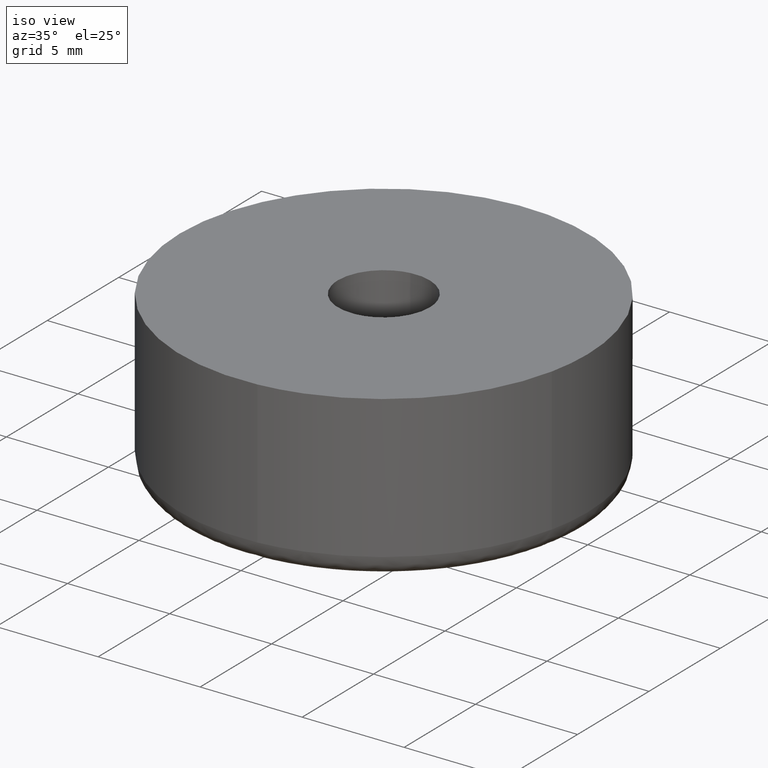
[diagram: clean part render]
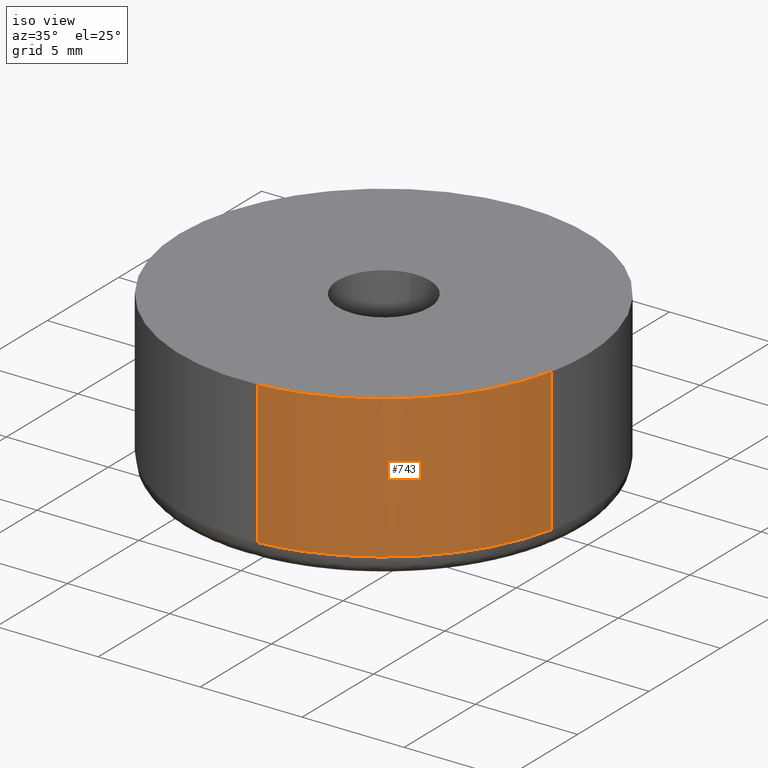
[diagram: same view with one face highlighted and labeled with its STEP entity id]
A machine part, iso view. The second image highlights one B-rep face of the part: STEP entity #743.
In plain terms, the highlighted face is a freeform B-spline surface patch.
Its self-contained STEP definition (entity closure, byte-faithful):
#679=CARTESIAN_POINT('',(9.773270624397938,-2.118269616413071,8.175000000000690));
#680=CARTESIAN_POINT('',(9.766484864417761,-2.148661470704314,8.175000000000690));
#681=CARTESIAN_POINT('',(8.149777588713580,-9.389520578355468,8.175000000000690));
#682=CARTESIAN_POINT('',(0.756423948956647,-9.971390128962344,8.175000000000690));
#683=CARTESIAN_POINT('',(0.728322792584790,-9.973601737932551,8.175000000000690));
#684=CARTESIAN_POINT('',(9.773270624397938,-2.118269616413071,0.820624999971612));
#685=CARTESIAN_POINT('',(9.766484864417761,-2.148661470704314,0.820624999971612));
#686=CARTESIAN_POINT('',(8.149777588713580,-9.389520578355468,0.820624999971612));
#687=CARTESIAN_POINT('',(0.756423948956647,-9.971390128962344,0.820624999971612));
#688=CARTESIAN_POINT('',(0.728322792584790,-9.973601737932551,0.820624999971612));
#696=(BOUNDED_SURFACE()B_SPLINE_SURFACE(2,1,((#679,#684),(#680,#685),(#681,#686),(#682,#687),(#683,#688)),.UNSPECIFIED.,.F.,.F.,.U.)B_SPLINE_SURFACE_WITH_KNOTS((3,1,1,3),(2,2),(0.0,0.065829388922783,13.230316627789239,13.296145906436040),(0.0,7.354375000029079),.UNSPECIFIED.)GEOMETRIC_REPRESENTATION_ITEM()RATIONAL_B_SPLINE_SURFACE(((0.907680205931852,0.907680205931852),(0.906977187955774,0.906977187955774),(0.765685424949238,0.765685424949238),(1.001171694663996,1.001171694663996),(1.002343389327992,1.002343389327992)))REPRESENTATION_ITEM('')SURFACE());
#697=CARTESIAN_POINT('',(9.759689999604271,-2.179094103425024,0.999999999999983));
#698=VERTEX_POINT('',#697);
#699=CARTESIAN_POINT('',(0.784585152188208,-9.969173794198387,1.000000000000015));
#700=VERTEX_POINT('',#699);
#701=CARTESIAN_POINT('',(9.759689999604271,-2.179094103425024,0.999999999999983));
#702=CARTESIAN_POINT('',(8.149781639381867,-9.389524574907334,1.0));
#703=CARTESIAN_POINT('',(0.784585152188208,-9.969173794198387,1.000000000000015));
#711=(BOUNDED_CURVE()B_SPLINE_CURVE(2,(#701,#702,#703),.UNSPECIFIED.,.F.,.U.)B_SPLINE_CURVE_WITH_KNOTS((3,3),(0.537286560370751,0.736331400453952),.UNSPECIFIED.)CURVE()GEOMETRIC_REPRESENTATION_ITEM()RATIONAL_B_SPLINE_CURVE((0.925662740296602,0.762027680026814,0.969723564491107))REPRESENTATION_ITEM(''));
#712=EDGE_CURVE('',#698,#700,#711,.T.);
#713=ORIENTED_EDGE('',*,*,#712,.F.);
#714=CARTESIAN_POINT('',(9.759689982042810,-2.179094182079235,8.0));
#715=VERTEX_POINT('',#714);
#716=CARTESIAN_POINT('',(9.759689982042810,-2.179094182079235,8.0));
#717=CARTESIAN_POINT('',(9.759689999604271,-2.179094103425024,0.999999999999983));
#718=QUASI_UNIFORM_CURVE('',1,(#716,#717),.UNSPECIFIED.,.F.,.U.);
#719=EDGE_CURVE('',#715,#698,#718,.T.);
#720=ORIENTED_EDGE('',*,*,#719,.F.);
#721=CARTESIAN_POINT('',(0.784585223780297,-9.969173788564049,8.0));
#722=VERTEX_POINT('',#721);
#723=CARTESIAN_POINT('',(9.759689982042810,-2.179094182079235,8.0));
#724=CARTESIAN_POINT('',(8.149781589379492,-9.389524525622949,8.0));
#725=CARTESIAN_POINT('',(0.784585223780297,-9.969173788564049,8.0));
#733=(BOUNDED_CURVE()B_SPLINE_CURVE(2,(#723,#724,#725),.UNSPECIFIED.,.F.,.U.)B_SPLINE_CURVE_WITH_KNOTS((3,3),(0.537286561689504,0.736331399222893),.UNSPECIFIED.)CURVE()GEOMETRIC_REPRESENTATION_ITEM()RATIONAL_B_SPLINE_CURVE((0.925662738128303,0.762027682414940,0.969723561921979))REPRESENTATION_ITEM(''));
#734=EDGE_CURVE('',#715,#722,#733,.T.);
#735=ORIENTED_EDGE('',*,*,#734,.T.);
#736=CARTESIAN_POINT('',(0.784585223780297,-9.969173788564049,8.0));
#737=CARTESIAN_POINT('',(0.784585152188208,-9.969173794198387,1.000000000000015));
#738=QUASI_UNIFORM_CURVE('',1,(#736,#737),.UNSPECIFIED.,.F.,.U.);
#739=EDGE_CURVE('',#722,#700,#738,.T.);
#740=ORIENTED_EDGE('',*,*,#739,.T.);
#741=EDGE_LOOP('',(#713,#720,#735,#740));
#742=FACE_OUTER_BOUND('',#741,.T.);
#743=ADVANCED_FACE('',(#742),#696,.T.);